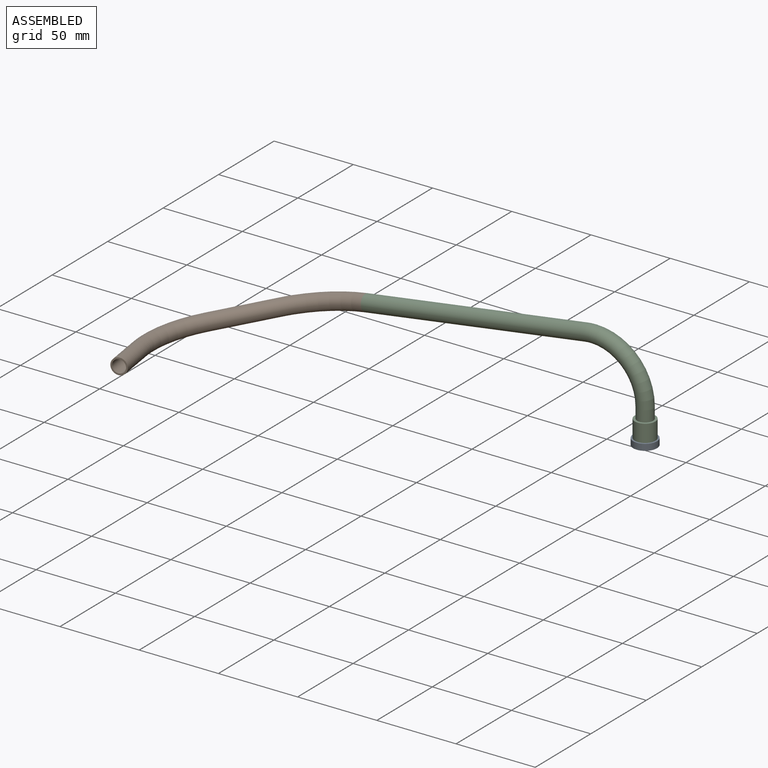
[diagram: assembled view]
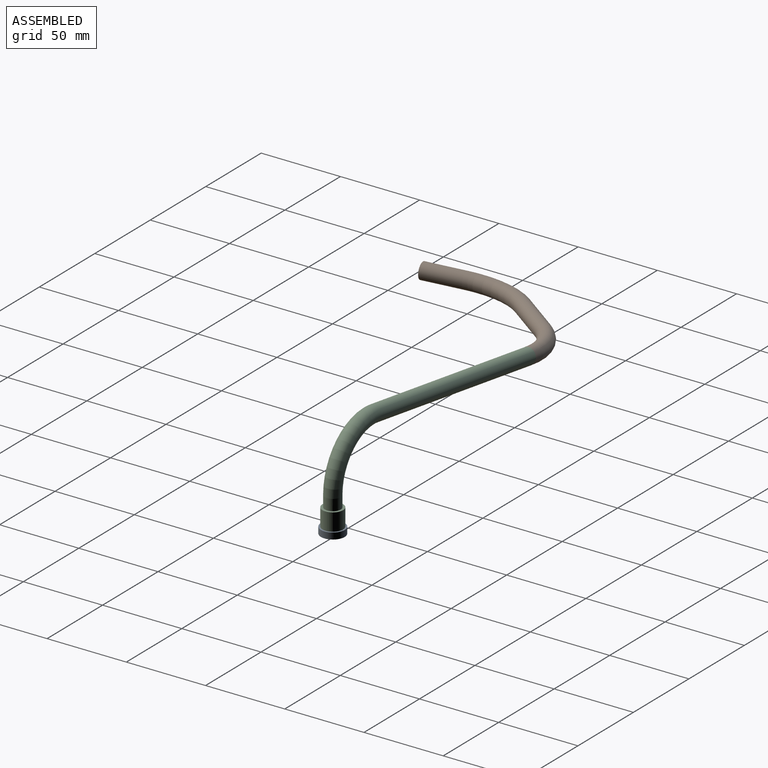
[diagram: assembled view, second angle]
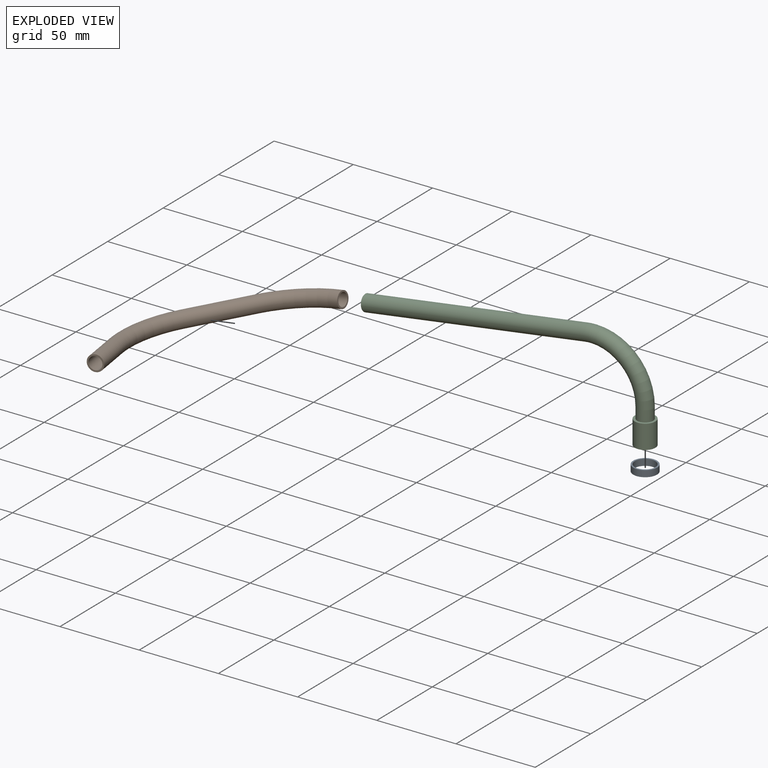
[diagram: exploded view]
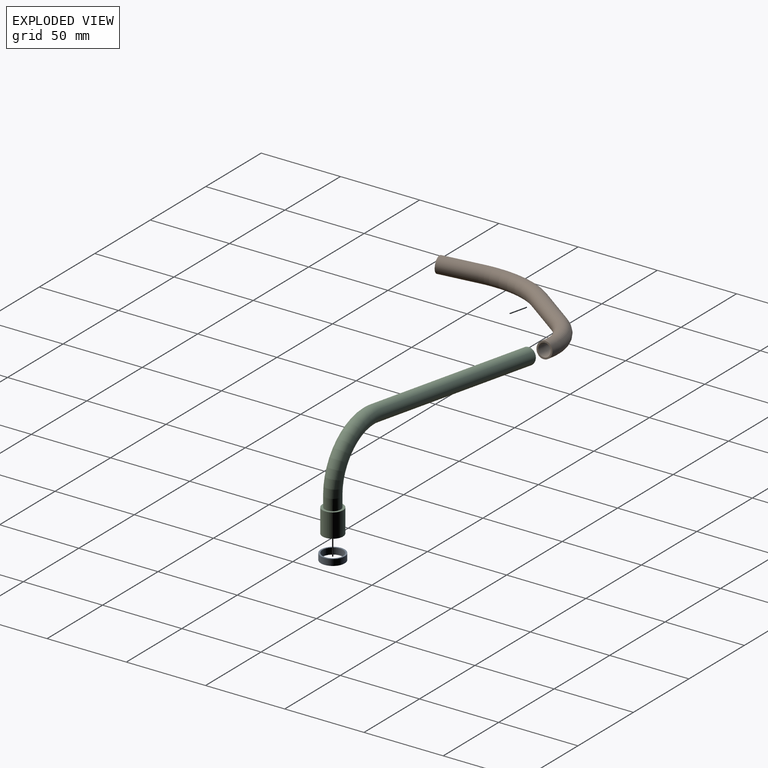
[diagram: exploded view, second angle]
ASSEMBLY  parts=3 mates=2
PART A: 4 faces, bbox 15x15x4 mm
  f0: cylinder r=6.5mm len=13mm, axis (0,0,-1), area 163.4mm2, adj f2,f3
  f1: cylinder r=7.5mm len=15mm, axis (0,0,-1), area 188.5mm2, adj f2,f3
  f2: plane 15x15mm, normal (0,0,1), area 44mm2, adj f0,f1
  f3: plane 15x15mm, normal (0,0,-1), area 44mm2, adj f0,f1
PART B: 10 faces, bbox 89.2x128.8x10 mm
  f0: torus R=53.66mm, axis (0,0,1), area 1176mm2, adj f1,f4
  f1: cylinder r=4mm len=35.77mm, axis (-0.64,-0.77,0), area 1005.3mm2, adj f0,f2
  f2: torus R=53.57mm, axis (0,0,1), area 1175.7mm2, adj f1,f3
  f3: cylinder r=4mm len=25.98mm, axis (0.17,-0.98,0), area 627.6mm2, adj f2,f5
  f4: plane 10x10mm, normal (1,0,0), area 28.3mm2, adj f0,f6
  f5: plane 10x9.85mm, normal (0.17,-0.98,0), area 28.3mm2, adj f3,f9
  f6: torus R=53.66mm, axis (0,0,1), area 1470mm2, adj f4,f7
  f7: cylinder r=5mm len=37.06mm, axis (-0.64,-0.77,0), area 1256.6mm2, adj f6,f8
  f8: torus R=53.57mm, axis (0,0,1), area 1469.7mm2, adj f7,f9
  f9: cylinder r=5mm len=26.33mm, axis (0.17,-0.98,0), area 784.5mm2, adj f5,f8
PART C: 10 faces, bbox 184.7x13x62.8 mm
  f0: cylinder r=5mm len=10mm, axis (0,0,1), area 219.6mm2, adj f6,f9
  f1: torus R=32.59mm, axis (0,-1,0), area 1408.2mm2, adj f2,f3
  f2: cylinder r=4mm len=139.67mm, axis (-0.99,0,-0.15), area 3518.6mm2, adj f1,f4
  f3: cylinder r=4mm len=22mm, axis (0,0,1), area 552.8mm2, adj f1,f5
  f4: plane 10x9.89mm, normal (-0.99,0,-0.15), area 28.3mm2, adj f2,f7
  f5: plane 13x13mm, normal (0,0,-1), area 82.5mm2, adj f3,f8
  f6: torus R=32.59mm, axis (0,-1,0), area 1760.2mm2, adj f0,f7
  f7: cylinder r=5mm len=139.97mm, axis (-0.99,0,-0.15), area 4398.2mm2, adj f4,f6
  f8: cylinder r=6.5mm len=15mm, axis (0,0,-1), area 612.6mm2, adj f5,f9
  f9: plane 13x13mm, normal (0,0,1), area 54.2mm2, adj f0,f8
PLACE A t=(-55.68,-28.67,27.41)mm
PLACE B rot(axis=(0,-1,0),8.4deg) t=(-231.53,-28.67,61.36)mm
PLACE C t=(-55.68,-28.67,27.41)mm
MATE fastened A.f0 <-> C.f0  axis (0,0,-1) through (-55.68,-28.67,27.41)mm
MATE fastened B.f4 <-> C.f2  axis (0.99,0,0.15) through (-231.53,-28.67,61.36)mm
